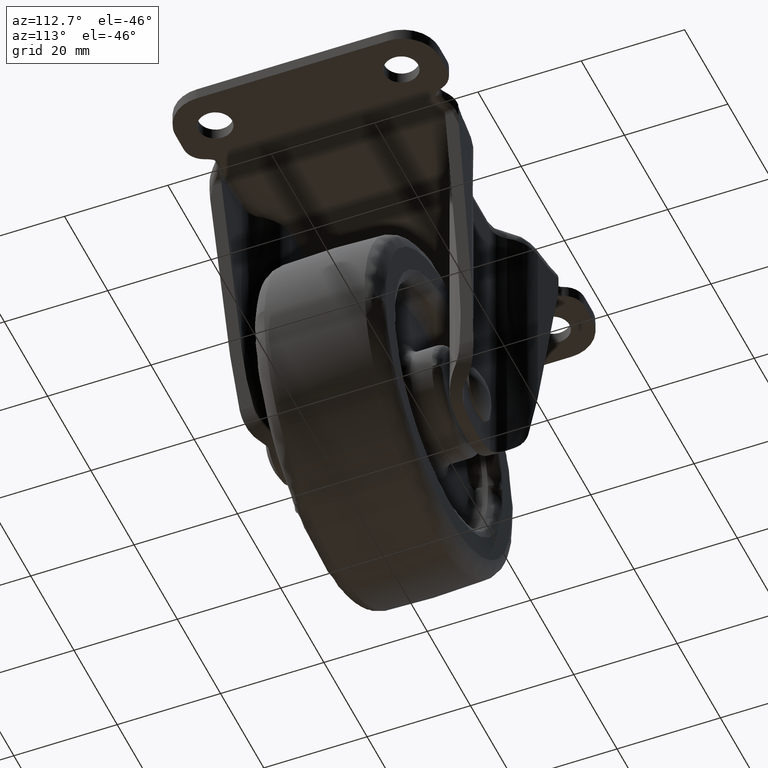
[diagram: clean part render]
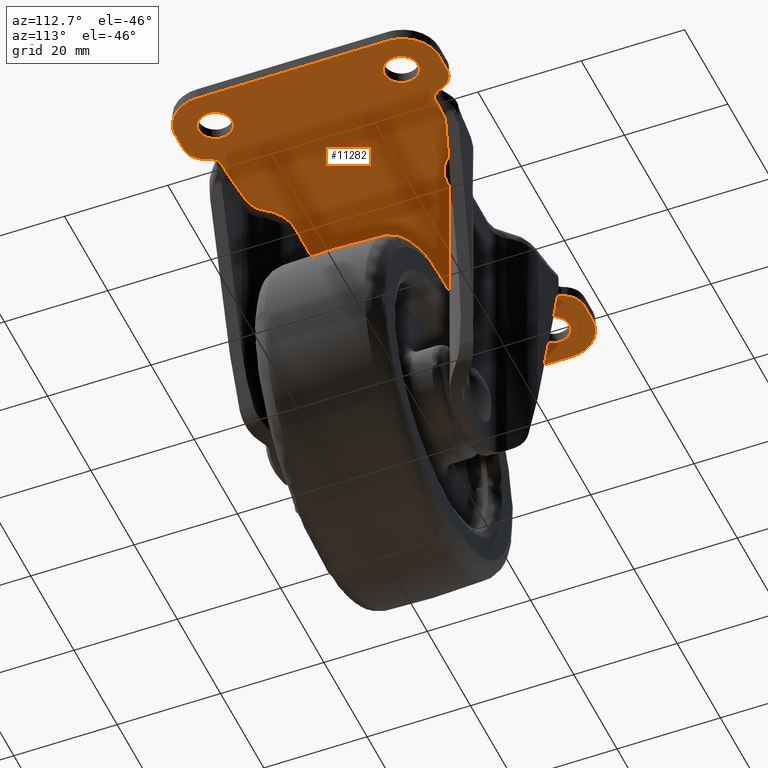
[diagram: same view with one face highlighted and labeled with its STEP entity id]
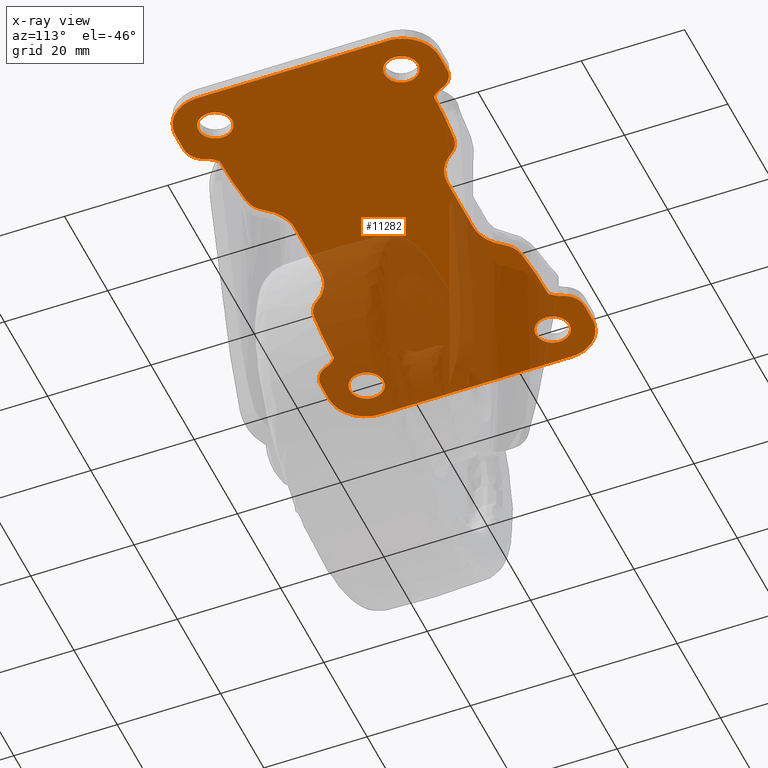
[diagram: x-ray of the same camera — body ghosted, the highlighted face saturated]
A machine part, auxiliary view. The second image highlights one B-rep face of the part: STEP entity #11282.
The next image is the same camera in x-ray: the body ghosted, the highlighted face saturated — about 43% of this face is hidden behind the body in this view.
In plain terms, the highlighted face is a freeform B-spline surface patch.
Its self-contained STEP definition (entity closure, byte-faithful):
#3607=CARTESIAN_POINT('',(-31.750000000000000,-18.0,-2.299999999999970));
#3608=VERTEX_POINT('',#3607);
#3609=CARTESIAN_POINT('',(-34.745007938871737,-21.239981334631661,-2.299999999999970));
#3610=VERTEX_POINT('',#3609);
#3611=CARTESIAN_POINT('',(-31.750000000000000,-18.0,-2.299999999999970));
#3612=CARTESIAN_POINT('',(-31.750000000000007,-21.004269097865425,-2.299999999999971));
#3613=CARTESIAN_POINT('',(-34.745007938871737,-21.239981334631658,-2.299999999999970));
#3621=(BOUNDED_CURVE()B_SPLINE_CURVE(2,(#3611,#3612,#3613),.UNSPECIFIED.,.F.,.U.)B_SPLINE_CURVE_WITH_KNOTS((3,3),(0.0,0.236331300631416),.UNSPECIFIED.)CURVE()GEOMETRIC_REPRESENTATION_ITEM()RATIONAL_B_SPLINE_CURVE((1.0,0.723120658606779,0.969723356168996))REPRESENTATION_ITEM(''));
#3622=EDGE_CURVE('',#3608,#3610,#3621,.T.);
#3663=CARTESIAN_POINT('',(-35.254992061128263,-14.760018665368341,-2.299999999999970));
#3664=VERTEX_POINT('',#3663);
#3670=CARTESIAN_POINT('',(-35.254992061128263,-14.760018665368342,-2.299999999999970));
#3671=CARTESIAN_POINT('',(-35.127692847787756,-14.749999999999995,-2.299999999999970));
#3672=CARTESIAN_POINT('',(-35.0,-14.750000000000000,-2.299999999999970));
#3673=CARTESIAN_POINT('',(-31.749999999999996,-14.749999999999993,-2.299999999999970));
#3674=CARTESIAN_POINT('',(-31.750000000000000,-18.0,-2.299999999999970));
#3682=(BOUNDED_CURVE()B_SPLINE_CURVE(2,(#3670,#3671,#3672,#3673,#3674),.UNSPECIFIED.,.F.,.U.)B_SPLINE_CURVE_WITH_KNOTS((3,2,3),(0.736331300631416,0.750000000000000,1.0),.UNSPECIFIED.)CURVE()GEOMETRIC_REPRESENTATION_ITEM()RATIONAL_B_SPLINE_CURVE((0.969723356168996,0.983986122579768,1.0,0.707106781186547,1.0))REPRESENTATION_ITEM(''));
#3683=EDGE_CURVE('',#3664,#3608,#3682,.T.);
#3710=CARTESIAN_POINT('',(-38.250000000000007,-18.0,-2.299999999999970));
#3711=VERTEX_POINT('',#3710);
#3712=CARTESIAN_POINT('',(-34.745007938871737,-21.239981334631665,-2.299999999999970));
#3713=CARTESIAN_POINT('',(-34.872307152212251,-21.250000000000000,-2.299999999999970));
#3714=CARTESIAN_POINT('',(-35.0,-21.250000000000000,-2.299999999999970));
#3715=CARTESIAN_POINT('',(-38.250000000000014,-21.249999999999996,-2.299999999999970));
#3716=CARTESIAN_POINT('',(-38.250000000000007,-18.0,-2.299999999999970));
#3724=(BOUNDED_CURVE()B_SPLINE_CURVE(2,(#3712,#3713,#3714,#3715,#3716),.UNSPECIFIED.,.F.,.U.)B_SPLINE_CURVE_WITH_KNOTS((3,2,3),(0.236331300631416,0.250000000000000,0.500000000000000),.UNSPECIFIED.)CURVE()GEOMETRIC_REPRESENTATION_ITEM()RATIONAL_B_SPLINE_CURVE((0.969723356168996,0.983986122579768,1.0,0.707106781186547,1.0))REPRESENTATION_ITEM(''));
#3725=EDGE_CURVE('',#3610,#3711,#3724,.T.);
#3727=CARTESIAN_POINT('',(-38.250000000000007,-18.0,-2.299999999999970));
#3728=CARTESIAN_POINT('',(-38.250000000000000,-14.995730902134564,-2.299999999999971));
#3729=CARTESIAN_POINT('',(-35.254992061128263,-14.760018665368342,-2.299999999999971));
#3737=(BOUNDED_CURVE()B_SPLINE_CURVE(2,(#3727,#3728,#3729),.UNSPECIFIED.,.F.,.U.)B_SPLINE_CURVE_WITH_KNOTS((3,3),(0.500000000000000,0.736331300631416),.UNSPECIFIED.)CURVE()GEOMETRIC_REPRESENTATION_ITEM()RATIONAL_B_SPLINE_CURVE((1.0,0.723120658606779,0.969723356168996))REPRESENTATION_ITEM(''));
#3738=EDGE_CURVE('',#3711,#3664,#3737,.T.);
#3797=CARTESIAN_POINT('',(-31.750000000000000,18.0,-2.299999999999970));
#3798=VERTEX_POINT('',#3797);
#3799=CARTESIAN_POINT('',(-34.745007938871737,14.760018665368341,-2.299999999999970));
#3800=VERTEX_POINT('',#3799);
#3801=CARTESIAN_POINT('',(-31.750000000000000,18.0,-2.299999999999970));
#3802=CARTESIAN_POINT('',(-31.749999999999996,14.995730902134580,-2.299999999999970));
#3803=CARTESIAN_POINT('',(-34.745007938871737,14.760018665368339,-2.299999999999970));
#3811=(BOUNDED_CURVE()B_SPLINE_CURVE(2,(#3801,#3802,#3803),.UNSPECIFIED.,.F.,.U.)B_SPLINE_CURVE_WITH_KNOTS((3,3),(0.0,0.236331300631416),.UNSPECIFIED.)CURVE()GEOMETRIC_REPRESENTATION_ITEM()RATIONAL_B_SPLINE_CURVE((1.0,0.723120658606780,0.969723356168995))REPRESENTATION_ITEM(''));
#3812=EDGE_CURVE('',#3798,#3800,#3811,.T.);
#3853=CARTESIAN_POINT('',(-35.254992061128263,21.239981334631661,-2.299999999999970));
#3854=VERTEX_POINT('',#3853);
#3860=CARTESIAN_POINT('',(-35.254992061128263,21.239981334631658,-2.299999999999970));
#3861=CARTESIAN_POINT('',(-35.127692847787756,21.249999999999993,-2.299999999999970));
#3862=CARTESIAN_POINT('',(-35.0,21.250000000000000,-2.299999999999970));
#3863=CARTESIAN_POINT('',(-31.749999999999996,21.249999999999996,-2.299999999999970));
#3864=CARTESIAN_POINT('',(-31.750000000000000,18.0,-2.299999999999970));
#3872=(BOUNDED_CURVE()B_SPLINE_CURVE(2,(#3860,#3861,#3862,#3863,#3864),.UNSPECIFIED.,.F.,.U.)B_SPLINE_CURVE_WITH_KNOTS((3,2,3),(0.736331300631416,0.750000000000000,1.0),.UNSPECIFIED.)CURVE()GEOMETRIC_REPRESENTATION_ITEM()RATIONAL_B_SPLINE_CURVE((0.969723356168996,0.983986122579768,1.0,0.707106781186547,1.0))REPRESENTATION_ITEM(''));
#3873=EDGE_CURVE('',#3854,#3798,#3872,.T.);
#3900=CARTESIAN_POINT('',(-38.250000000000007,18.0,-2.299999999999970));
#3901=VERTEX_POINT('',#3900);
#3902=CARTESIAN_POINT('',(-34.745007938871737,14.760018665368339,-2.299999999999970));
#3903=CARTESIAN_POINT('',(-34.872307152212251,14.749999999999998,-2.299999999999970));
#3904=CARTESIAN_POINT('',(-35.0,14.750000000000000,-2.299999999999970));
#3905=CARTESIAN_POINT('',(-38.250000000000014,14.749999999999993,-2.299999999999970));
#3906=CARTESIAN_POINT('',(-38.250000000000007,18.0,-2.299999999999970));
#3914=(BOUNDED_CURVE()B_SPLINE_CURVE(2,(#3902,#3903,#3904,#3905,#3906),.UNSPECIFIED.,.F.,.U.)B_SPLINE_CURVE_WITH_KNOTS((3,2,3),(0.236331300631416,0.250000000000000,0.500000000000000),.UNSPECIFIED.)CURVE()GEOMETRIC_REPRESENTATION_ITEM()RATIONAL_B_SPLINE_CURVE((0.969723356168995,0.983986122579768,1.0,0.707106781186547,1.0))REPRESENTATION_ITEM(''));
#3915=EDGE_CURVE('',#3800,#3901,#3914,.T.);
#3917=CARTESIAN_POINT('',(-38.250000000000007,18.0,-2.299999999999970));
#3918=CARTESIAN_POINT('',(-38.250000000000000,21.004269097865425,-2.299999999999971));
#3919=CARTESIAN_POINT('',(-35.254992061128263,21.239981334631654,-2.299999999999971));
#3927=(BOUNDED_CURVE()B_SPLINE_CURVE(2,(#3917,#3918,#3919),.UNSPECIFIED.,.F.,.U.)B_SPLINE_CURVE_WITH_KNOTS((3,3),(0.500000000000000,0.736331300631416),.UNSPECIFIED.)CURVE()GEOMETRIC_REPRESENTATION_ITEM()RATIONAL_B_SPLINE_CURVE((1.0,0.723120658606779,0.969723356168996))REPRESENTATION_ITEM(''));
#3928=EDGE_CURVE('',#3901,#3854,#3927,.T.);
#3987=CARTESIAN_POINT('',(38.250000000000007,-18.0,-2.299999999999970));
#3988=VERTEX_POINT('',#3987);
#3989=CARTESIAN_POINT('',(35.254992061128263,-21.239981334631661,-2.299999999999970));
#3990=VERTEX_POINT('',#3989);
#3991=CARTESIAN_POINT('',(38.250000000000007,-18.0,-2.299999999999970));
#3992=CARTESIAN_POINT('',(38.250000000000000,-21.004269097865425,-2.299999999999971));
#3993=CARTESIAN_POINT('',(35.254992061128263,-21.239981334631654,-2.299999999999971));
#4001=(BOUNDED_CURVE()B_SPLINE_CURVE(2,(#3991,#3992,#3993),.UNSPECIFIED.,.F.,.U.)B_SPLINE_CURVE_WITH_KNOTS((3,3),(0.0,0.236331300631416),.UNSPECIFIED.)CURVE()GEOMETRIC_REPRESENTATION_ITEM()RATIONAL_B_SPLINE_CURVE((1.0,0.723120658606779,0.969723356168996))REPRESENTATION_ITEM(''));
#4002=EDGE_CURVE('',#3988,#3990,#4001,.T.);
#4043=CARTESIAN_POINT('',(34.745007938871737,-14.760018665368341,-2.299999999999970));
#4044=VERTEX_POINT('',#4043);
#4050=CARTESIAN_POINT('',(34.745007938871744,-14.760018665368342,-2.299999999999970));
#4051=CARTESIAN_POINT('',(34.872307152212244,-14.749999999999995,-2.299999999999970));
#4052=CARTESIAN_POINT('',(35.0,-14.750000000000000,-2.299999999999970));
#4053=CARTESIAN_POINT('',(38.250000000000014,-14.749999999999993,-2.299999999999970));
#4054=CARTESIAN_POINT('',(38.250000000000007,-18.0,-2.299999999999970));
#4062=(BOUNDED_CURVE()B_SPLINE_CURVE(2,(#4050,#4051,#4052,#4053,#4054),.UNSPECIFIED.,.F.,.U.)B_SPLINE_CURVE_WITH_KNOTS((3,2,3),(0.736331300631416,0.750000000000000,1.0),.UNSPECIFIED.)CURVE()GEOMETRIC_REPRESENTATION_ITEM()RATIONAL_B_SPLINE_CURVE((0.969723356168996,0.983986122579768,1.0,0.707106781186547,1.0))REPRESENTATION_ITEM(''));
#4063=EDGE_CURVE('',#4044,#3988,#4062,.T.);
#4090=CARTESIAN_POINT('',(31.750000000000000,-18.0,-2.299999999999970));
#4091=VERTEX_POINT('',#4090);
#4092=CARTESIAN_POINT('',(35.254992061128263,-21.239981334631661,-2.299999999999970));
#4093=CARTESIAN_POINT('',(35.127692847787749,-21.250000000000000,-2.299999999999970));
#4094=CARTESIAN_POINT('',(35.0,-21.250000000000000,-2.299999999999970));
#4095=CARTESIAN_POINT('',(31.749999999999996,-21.249999999999996,-2.299999999999970));
#4096=CARTESIAN_POINT('',(31.750000000000000,-18.0,-2.299999999999970));
#4104=(BOUNDED_CURVE()B_SPLINE_CURVE(2,(#4092,#4093,#4094,#4095,#4096),.UNSPECIFIED.,.F.,.U.)B_SPLINE_CURVE_WITH_KNOTS((3,2,3),(0.236331300631416,0.250000000000000,0.500000000000000),.UNSPECIFIED.)CURVE()GEOMETRIC_REPRESENTATION_ITEM()RATIONAL_B_SPLINE_CURVE((0.969723356168996,0.983986122579768,1.0,0.707106781186547,1.0))REPRESENTATION_ITEM(''));
#4105=EDGE_CURVE('',#3990,#4091,#4104,.T.);
#4107=CARTESIAN_POINT('',(31.750000000000000,-18.0,-2.299999999999970));
#4108=CARTESIAN_POINT('',(31.749999999999996,-14.995730902134564,-2.299999999999971));
#4109=CARTESIAN_POINT('',(34.745007938871744,-14.760018665368342,-2.299999999999971));
#4117=(BOUNDED_CURVE()B_SPLINE_CURVE(2,(#4107,#4108,#4109),.UNSPECIFIED.,.F.,.U.)B_SPLINE_CURVE_WITH_KNOTS((3,3),(0.500000000000000,0.736331300631416),.UNSPECIFIED.)CURVE()GEOMETRIC_REPRESENTATION_ITEM()RATIONAL_B_SPLINE_CURVE((1.0,0.723120658606779,0.969723356168996))REPRESENTATION_ITEM(''));
#4118=EDGE_CURVE('',#4091,#4044,#4117,.T.);
#4177=CARTESIAN_POINT('',(38.250000000000007,18.0,-2.299999999999970));
#4178=VERTEX_POINT('',#4177);
#4179=CARTESIAN_POINT('',(35.254992061128263,14.760018665368341,-2.299999999999970));
#4180=VERTEX_POINT('',#4179);
#4181=CARTESIAN_POINT('',(38.250000000000007,18.0,-2.299999999999970));
#4182=CARTESIAN_POINT('',(38.250000000000000,14.995730902134580,-2.299999999999971));
#4183=CARTESIAN_POINT('',(35.254992061128263,14.760018665368342,-2.299999999999971));
#4191=(BOUNDED_CURVE()B_SPLINE_CURVE(2,(#4181,#4182,#4183),.UNSPECIFIED.,.F.,.U.)B_SPLINE_CURVE_WITH_KNOTS((3,3),(0.0,0.236331300631416),.UNSPECIFIED.)CURVE()GEOMETRIC_REPRESENTATION_ITEM()RATIONAL_B_SPLINE_CURVE((1.0,0.723120658606779,0.969723356168996))REPRESENTATION_ITEM(''));
#4192=EDGE_CURVE('',#4178,#4180,#4191,.T.);
#4233=CARTESIAN_POINT('',(34.745007938871737,21.239981334631661,-2.299999999999970));
#4234=VERTEX_POINT('',#4233);
#4240=CARTESIAN_POINT('',(34.745007938871744,21.239981334631658,-2.299999999999970));
#4241=CARTESIAN_POINT('',(34.872307152212244,21.249999999999993,-2.299999999999970));
#4242=CARTESIAN_POINT('',(35.0,21.250000000000000,-2.299999999999970));
#4243=CARTESIAN_POINT('',(38.250000000000014,21.249999999999996,-2.299999999999970));
#4244=CARTESIAN_POINT('',(38.250000000000007,18.0,-2.299999999999970));
#4252=(BOUNDED_CURVE()B_SPLINE_CURVE(2,(#4240,#4241,#4242,#4243,#4244),.UNSPECIFIED.,.F.,.U.)B_SPLINE_CURVE_WITH_KNOTS((3,2,3),(0.736331300631416,0.750000000000000,1.0),.UNSPECIFIED.)CURVE()GEOMETRIC_REPRESENTATION_ITEM()RATIONAL_B_SPLINE_CURVE((0.969723356168996,0.983986122579768,1.0,0.707106781186547,1.0))REPRESENTATION_ITEM(''));
#4253=EDGE_CURVE('',#4234,#4178,#4252,.T.);
#4280=CARTESIAN_POINT('',(31.750000000000000,18.0,-2.299999999999970));
#4281=VERTEX_POINT('',#4280);
#4282=CARTESIAN_POINT('',(35.254992061128263,14.760018665368335,-2.299999999999970));
#4283=CARTESIAN_POINT('',(35.127692847787749,14.750000000000002,-2.299999999999970));
#4284=CARTESIAN_POINT('',(35.0,14.750000000000000,-2.299999999999970));
#4285=CARTESIAN_POINT('',(31.749999999999996,14.749999999999993,-2.299999999999970));
#4286=CARTESIAN_POINT('',(31.750000000000000,18.0,-2.299999999999970));
#4294=(BOUNDED_CURVE()B_SPLINE_CURVE(2,(#4282,#4283,#4284,#4285,#4286),.UNSPECIFIED.,.F.,.U.)B_SPLINE_CURVE_WITH_KNOTS((3,2,3),(0.236331300631416,0.250000000000000,0.500000000000000),.UNSPECIFIED.)CURVE()GEOMETRIC_REPRESENTATION_ITEM()RATIONAL_B_SPLINE_CURVE((0.969723356168996,0.983986122579768,1.0,0.707106781186547,1.0))REPRESENTATION_ITEM(''));
#4295=EDGE_CURVE('',#4180,#4281,#4294,.T.);
#4297=CARTESIAN_POINT('',(31.750000000000000,18.0,-2.299999999999970));
#4298=CARTESIAN_POINT('',(31.749999999999996,21.004269097865425,-2.299999999999971));
#4299=CARTESIAN_POINT('',(34.745007938871744,21.239981334631654,-2.299999999999971));
#4307=(BOUNDED_CURVE()B_SPLINE_CURVE(2,(#4297,#4298,#4299),.UNSPECIFIED.,.F.,.U.)B_SPLINE_CURVE_WITH_KNOTS((3,3),(0.500000000000000,0.736331300631416),.UNSPECIFIED.)CURVE()GEOMETRIC_REPRESENTATION_ITEM()RATIONAL_B_SPLINE_CURVE((1.0,0.723120658606779,0.969723356168996))REPRESENTATION_ITEM(''));
#4308=EDGE_CURVE('',#4281,#4234,#4307,.T.);
#4833=CARTESIAN_POINT('',(-26.417385013468699,-20.730078185073150,-2.300000000000000));
#4834=VERTEX_POINT('',#4833);
#4931=CARTESIAN_POINT('',(-28.029909111446202,-23.057649923659401,-2.299999999999970));
#4932=VERTEX_POINT('',#4931);
#4940=CARTESIAN_POINT('',(-26.417385013468699,-20.730078185073150,-2.300000000000000));
#4941=CARTESIAN_POINT('',(-26.441672568074779,-20.747274506300879,-2.300000000000000));
#4942=CARTESIAN_POINT('',(-26.466201056542921,-20.765096688782101,-2.300000000000000));
#4943=CARTESIAN_POINT('',(-26.514262825416999,-20.801360744156160,-2.299999999999999));
#4944=CARTESIAN_POINT('',(-26.537988330394128,-20.819862479855249,-2.299999999999999));
#4945=CARTESIAN_POINT('',(-26.608274976876739,-20.876426780707870,-2.300000000000000));
#4946=CARTESIAN_POINT('',(-26.653950418840800,-20.915551614282379,-2.299999999999999));
#4947=CARTESIAN_POINT('',(-26.787716056850648,-21.036829323350890,-2.300000000000000));
#4948=CARTESIAN_POINT('',(-26.871904465007919,-21.122289781392158,-2.300000000000000));
#4949=CARTESIAN_POINT('',(-27.031970017918219,-21.300080431606609,-2.300000000000000));
#4950=CARTESIAN_POINT('',(-27.107935882288920,-21.392481580217140,-2.300000000000000));
#4951=CARTESIAN_POINT('',(-27.253396456944941,-21.582862243435532,-2.300000000000000));
#4952=CARTESIAN_POINT('',(-27.323025675393041,-21.681053686466971,-2.300000000000000));
#4953=CARTESIAN_POINT('',(-27.455727361734262,-21.880411680324521,-2.300000000000000));
#4954=CARTESIAN_POINT('',(-27.518933817053728,-21.981722061959889,-2.299999999999999));
#4955=CARTESIAN_POINT('',(-27.639564355009998,-22.187342860470899,-2.299999999999999));
#4956=CARTESIAN_POINT('',(-27.696994820870650,-22.291649965575122,-2.299999999999999));
#4957=CARTESIAN_POINT('',(-27.805519584228730,-22.503551533659110,-2.299999999999999));
#4958=CARTESIAN_POINT('',(-27.856633917302521,-22.611135601695771,-2.299999999999999));
#4959=CARTESIAN_POINT('',(-27.950545386260998,-22.830618901463438,-2.300000000000000));
#4960=CARTESIAN_POINT('',(-27.993385247582829,-22.942495966201029,-2.299999999999970));
#4961=CARTESIAN_POINT('',(-28.029909111446202,-23.057649923659401,-2.299999999999970));
#4962=B_SPLINE_CURVE_WITH_KNOTS('',3,(#4940,#4941,#4942,#4943,#4944,#4945,#4946,#4947,#4948,#4949,#4950,#4951,#4952,#4953,#4954,#4955,#4956,#4957,#4958,#4959,#4960,#4961),.UNSPECIFIED.,.F.,.U.,(4,2,2,2,2,2,2,2,2,2,4),(0.0,0.031250000000001,0.062500000000002,0.125000000000000,0.250000000000000,0.375000000000000,0.500000000000000,0.625000000000000,0.750000000000000,0.875000000000000,1.0),.UNSPECIFIED.);
#4963=EDGE_CURVE('',#4834,#4932,#4962,.T.);
#5322=CARTESIAN_POINT('',(26.417385013468401,-20.730080090269549,-2.300000000000000));
#5323=VERTEX_POINT('',#5322);
#5331=CARTESIAN_POINT('',(28.029896909383400,-23.057659746380200,-2.299999999999970));
#5332=VERTEX_POINT('',#5331);
#5333=CARTESIAN_POINT('',(28.029896909383400,-23.057659746380200,-2.299999999999970));
#5334=CARTESIAN_POINT('',(27.993389845395559,-22.942555601617929,-2.299999999999970));
#5335=CARTESIAN_POINT('',(27.950561550324149,-22.830695180642451,-2.300000000000000));
#5336=CARTESIAN_POINT('',(27.856654342755508,-22.611208122213441,-2.299999999999999));
#5337=CARTESIAN_POINT('',(27.805533202047151,-22.503603154059910,-2.299999999999999));
#5338=CARTESIAN_POINT('',(27.696975748803830,-22.291633832247278,-2.300000000000000));
#5339=CARTESIAN_POINT('',(27.639519551176640,-22.187279682573049,-2.299999999999999));
#5340=CARTESIAN_POINT('',(27.518816048144249,-21.981543075574301,-2.300000000000000));
#5341=CARTESIAN_POINT('',(27.455562466521780,-21.880163838874790,-2.299999999999999));
#5342=CARTESIAN_POINT('',(27.322737420505511,-21.680647371084639,-2.300000000000000));
#5343=CARTESIAN_POINT('',(27.253163201121069,-21.582556718262229,-2.300000000000000));
#5344=CARTESIAN_POINT('',(27.107824932115800,-21.392356349549591,-2.300000000000000));
#5345=CARTESIAN_POINT('',(27.031907160195420,-21.300015908528771,-2.300000000000000));
#5346=CARTESIAN_POINT('',(26.871891591424919,-21.122284022752620,-2.300000000000000));
#5347=CARTESIAN_POINT('',(26.787656161654951,-21.036777683633389,-2.300000000000000));
#5348=CARTESIAN_POINT('',(26.653926419815068,-20.915534954899119,-2.300000000000000));
#5349=CARTESIAN_POINT('',(26.608259973337290,-20.876417839229351,-2.300000000000000));
#5350=CARTESIAN_POINT('',(26.537981114378550,-20.819859705973620,-2.300000000000000));
#5351=CARTESIAN_POINT('',(26.514255070548899,-20.801357487651099,-2.300000000000000));
#5352=CARTESIAN_POINT('',(26.466199516381842,-20.765097888782279,-2.300000000000000));
#5353=CARTESIAN_POINT('',(26.441680482451101,-20.747282202118399,-2.300000000000000));
#5354=CARTESIAN_POINT('',(26.417385013468401,-20.730080090269549,-2.300000000000000));
#5355=B_SPLINE_CURVE_WITH_KNOTS('',3,(#5333,#5334,#5335,#5336,#5337,#5338,#5339,#5340,#5341,#5342,#5343,#5344,#5345,#5346,#5347,#5348,#5349,#5350,#5351,#5352,#5353,#5354),.UNSPECIFIED.,.F.,.U.,(4,2,2,2,2,2,2,2,2,2,4),(0.0,0.124999999999999,0.249999999999999,0.374999999999998,0.499999999999997,0.624999999999997,0.749999999999996,0.874999999999995,0.937499999999996,0.968749999999998,1.0),.UNSPECIFIED.);
#5356=EDGE_CURVE('',#5332,#5323,#5355,.T.);
#5745=CARTESIAN_POINT('',(26.417385013468401,20.730080090269400,-2.300000000000000));
#5746=VERTEX_POINT('',#5745);
#5843=CARTESIAN_POINT('',(28.029896909381751,23.057659746376100,-2.299999999999970));
#5844=VERTEX_POINT('',#5843);
#5852=CARTESIAN_POINT('',(26.417385013468401,20.730080090269400,-2.300000000000000));
#5853=CARTESIAN_POINT('',(26.441672479210709,20.747276535522399,-2.300000000000000));
#5854=CARTESIAN_POINT('',(26.466200874818281,20.765098840976460,-2.300000000000000));
#5855=CARTESIAN_POINT('',(26.514262458200850,20.801363134699940,-2.300000000000000));
#5856=CARTESIAN_POINT('',(26.537987871237959,20.819864987817560,-2.300000000000000));
#5857=CARTESIAN_POINT('',(26.608274235996898,20.876429629156888,-2.300000000000000));
#5858=CARTESIAN_POINT('',(26.653949486063890,20.915554676871992,-2.300000000000000));
#5859=CARTESIAN_POINT('',(26.787714538220140,21.036832991613309,-2.300000000000000));
#5860=CARTESIAN_POINT('',(26.871902592436420,21.122293848791259,-2.300000000000000));
#5861=CARTESIAN_POINT('',(27.031967362499248,21.300085170231078,-2.300000000000000));
#5862=CARTESIAN_POINT('',(27.107932821759551,21.392486613315128,-2.300000000000000));
#5863=CARTESIAN_POINT('',(27.253392548806609,21.582867813477570,-2.300000000000000));
#5864=CARTESIAN_POINT('',(27.323021346924332,21.681059529550751,-2.300000000000000));
#5865=CARTESIAN_POINT('',(27.455722209177289,21.880418163599050,-2.300000000000000));
#5866=CARTESIAN_POINT('',(27.518928219445929,21.981728852410040,-2.300000000000000));
#5867=CARTESIAN_POINT('',(27.639557775025409,22.187350257896220,-2.300000000000000));
#5868=CARTESIAN_POINT('',(27.696987703516950,22.291657662883431,-2.300000000000000));
#5869=CARTESIAN_POINT('',(27.805511266699138,22.503559835271151,-2.300000000000000));
#5870=CARTESIAN_POINT('',(27.856624936547750,22.611144208137080,-2.300000000000000));
#5871=CARTESIAN_POINT('',(27.950534918550851,22.830628121366068,-2.300000000000000));
#5872=CARTESIAN_POINT('',(27.993373953744570,22.942505496388041,-2.299999999999970));
#5873=CARTESIAN_POINT('',(28.029896909381751,23.057659746376100,-2.299999999999970));
#5874=B_SPLINE_CURVE_WITH_KNOTS('',3,(#5852,#5853,#5854,#5855,#5856,#5857,#5858,#5859,#5860,#5861,#5862,#5863,#5864,#5865,#5866,#5867,#5868,#5869,#5870,#5871,#5872,#5873),.UNSPECIFIED.,.F.,.U.,(4,2,2,2,2,2,2,2,2,2,4),(0.0,0.031250000000001,0.062500000000001,0.125000000000002,0.250000000000002,0.375000000000002,0.500000000000001,0.625000000000001,0.750000000000001,0.875000000000000,1.0),.UNSPECIFIED.);
#5875=EDGE_CURVE('',#5746,#5844,#5874,.T.);
#6234=CARTESIAN_POINT('',(-26.417385013468699,20.730078887812802,-2.300000000000000));
#6235=VERTEX_POINT('',#6234);
#6243=CARTESIAN_POINT('',(-28.029909274478751,23.057650309274401,-2.299999999999970));
#6244=VERTEX_POINT('',#6243);
#6245=CARTESIAN_POINT('',(-28.029909274478751,23.057650309274401,-2.299999999999970));
#6246=CARTESIAN_POINT('',(-27.993401281843848,22.942546471831520,-2.299999999999971));
#6247=CARTESIAN_POINT('',(-27.950572143634329,22.830686375393199,-2.300000000000000));
#6248=CARTESIAN_POINT('',(-27.856663420277581,22.611199958296879,-2.300000000000000));
#6249=CARTESIAN_POINT('',(-27.805541604495779,22.503595308590679,-2.300000000000000));
#6250=CARTESIAN_POINT('',(-27.696982930995070,22.291626618057659,-2.299999999999999));
#6251=CARTESIAN_POINT('',(-27.639526187764972,22.187272781622958,-2.299999999999999));
#6252=CARTESIAN_POINT('',(-27.518821688406842,21.981536808388270,-2.300000000000000));
#6253=CARTESIAN_POINT('',(-27.455567656020420,21.880157892295092,-2.300000000000000));
#6254=CARTESIAN_POINT('',(-27.322741776302589,21.680642091976910,-2.300000000000000));
#6255=CARTESIAN_POINT('',(-27.253167109091439,21.582551692146438,-2.300000000000000));
#6256=CARTESIAN_POINT('',(-27.107827992414911,21.392351896268721,-2.300000000000000));
#6257=CARTESIAN_POINT('',(-27.031909815738640,21.300011767098461,-2.300000000000000));
#6258=CARTESIAN_POINT('',(-26.871893465256861,21.122280586259720,-2.300000000000000));
#6259=CARTESIAN_POINT('',(-26.787657680316020,21.036774660983269,-2.300000000000000));
#6260=CARTESIAN_POINT('',(-26.653927351864279,20.915532559401910,-2.300000000000000));
#6261=CARTESIAN_POINT('',(-26.608260713429321,20.876415665067160,-2.300000000000000));
#6262=CARTESIAN_POINT('',(-26.537981572998039,20.819857883131000,-2.299999999999999));
#6263=CARTESIAN_POINT('',(-26.514255437281282,20.801355785793280,-2.299999999999999));
#6264=CARTESIAN_POINT('',(-26.466199697870369,20.765096432365642,-2.299999999999999));
#6265=CARTESIAN_POINT('',(-26.441680571613158,20.747280872435880,-2.300000000000000));
#6266=CARTESIAN_POINT('',(-26.417385013468699,20.730078887812802,-2.300000000000000));
#6267=B_SPLINE_CURVE_WITH_KNOTS('',3,(#6245,#6246,#6247,#6248,#6249,#6250,#6251,#6252,#6253,#6254,#6255,#6256,#6257,#6258,#6259,#6260,#6261,#6262,#6263,#6264,#6265,#6266),.UNSPECIFIED.,.F.,.U.,(4,2,2,2,2,2,2,2,2,2,4),(0.0,0.125000000000000,0.250000000000000,0.375000000000000,0.500000000000000,0.625000000000000,0.750000000000000,0.875000000000000,0.937500000000001,0.968750000000000,1.0),.UNSPECIFIED.);
#6268=EDGE_CURVE('',#6244,#6235,#6267,.T.);
#8024=CARTESIAN_POINT('',(26.417385013468401,20.718753008960000,-2.300000000000000));
#8025=VERTEX_POINT('',#8024);
#8033=CARTESIAN_POINT('',(15.677582173383650,20.073606172674801,-2.300000000000000));
#8034=VERTEX_POINT('',#8033);
#8035=CARTESIAN_POINT('',(15.677582173383650,20.073606172674801,-2.300000000000000));
#8036=CARTESIAN_POINT('',(21.029572811196942,20.694341589038444,-2.300000000000000));
#8037=CARTESIAN_POINT('',(26.417385013468351,20.718753008960022,-2.300000000000000));
#8045=(BOUNDED_CURVE()B_SPLINE_CURVE(2,(#8035,#8036,#8037),.UNSPECIFIED.,.F.,.U.)CURVE()GEOMETRIC_REPRESENTATION_ITEM()QUASI_UNIFORM_CURVE()RATIONAL_B_SPLINE_CURVE((1.0,0.998462060748318,1.0))REPRESENTATION_ITEM(''));
#8046=EDGE_CURVE('',#8034,#8025,#8045,.T.);
#8112=CARTESIAN_POINT('',(12.179007029302500,17.998226477740850,-2.300000000000000));
#8113=VERTEX_POINT('',#8112);
#8143=CARTESIAN_POINT('',(12.179007029302500,17.998226477740850,-2.300000000000000));
#8144=CARTESIAN_POINT('',(13.441176062747498,19.857076856060843,-2.300000000000000));
#8145=CARTESIAN_POINT('',(15.677582173383650,20.073606172674801,-2.300000000000000));
#8153=(BOUNDED_CURVE()B_SPLINE_CURVE(2,(#8143,#8144,#8145),.UNSPECIFIED.,.F.,.U.)CURVE()GEOMETRIC_REPRESENTATION_ITEM()QUASI_UNIFORM_CURVE()RATIONAL_B_SPLINE_CURVE((1.0,0.905223693029561,1.0))REPRESENTATION_ITEM(''));
#8154=EDGE_CURVE('',#8113,#8034,#8153,.T.);
#8176=CARTESIAN_POINT('',(6.0,14.725001000000001,-2.300000000000000));
#8177=VERTEX_POINT('',#8176);
#8207=CARTESIAN_POINT('',(6.0,14.725001000000001,-2.300000000000000));
#8208=CARTESIAN_POINT('',(9.956471700423100,14.725000999999997,-2.300000000000000));
#8209=CARTESIAN_POINT('',(12.179007029302509,17.998226477740840,-2.300000000000000));
#8217=(BOUNDED_CURVE()B_SPLINE_CURVE(2,(#8207,#8208,#8209),.UNSPECIFIED.,.F.,.U.)CURVE()GEOMETRIC_REPRESENTATION_ITEM()QUASI_UNIFORM_CURVE()RATIONAL_B_SPLINE_CURVE((1.0,0.883670414521644,1.0))REPRESENTATION_ITEM(''));
#8218=EDGE_CURVE('',#8177,#8113,#8217,.T.);
#8237=CARTESIAN_POINT('',(-5.999999916666600,14.725001000000001,-2.300000000000000));
#8238=VERTEX_POINT('',#8237);
#8260=CARTESIAN_POINT('',(-5.999999916666600,14.725001000000001,-2.300000000000000));
#8261=CARTESIAN_POINT('',(6.0,14.725001000000001,-2.300000000000000));
#8262=QUASI_UNIFORM_CURVE('',1,(#8260,#8261),.UNSPECIFIED.,.F.,.U.);
#8263=EDGE_CURVE('',#8238,#8177,#8262,.T.);
#8285=CARTESIAN_POINT('',(-12.179007454912821,17.998225210995301,-2.300000000000000));
#8286=VERTEX_POINT('',#8285);
#8316=CARTESIAN_POINT('',(-12.179007454912821,17.998225210995301,-2.300000000000000));
#8317=CARTESIAN_POINT('',(-9.956471592505041,14.725000657089987,-2.299999999999999));
#8318=CARTESIAN_POINT('',(-5.999999916666600,14.725001000000001,-2.300000000000000));
#8326=(BOUNDED_CURVE()B_SPLINE_CURVE(2,(#8316,#8317,#8318),.UNSPECIFIED.,.F.,.U.)CURVE()GEOMETRIC_REPRESENTATION_ITEM()QUASI_UNIFORM_CURVE()RATIONAL_B_SPLINE_CURVE((1.0,0.883670437259365,1.0))REPRESENTATION_ITEM(''));
#8327=EDGE_CURVE('',#8286,#8238,#8326,.T.);
#8349=CARTESIAN_POINT('',(-15.677576820123249,20.073605654367249,-2.300000000000000));
#8350=VERTEX_POINT('',#8349);
#8395=CARTESIAN_POINT('',(-15.677576820123249,20.073605654367249,-2.300000000000000));
#8396=CARTESIAN_POINT('',(-13.441174167971894,19.857073794725377,-2.300000000000000));
#8397=CARTESIAN_POINT('',(-12.179007454912830,17.998225210995290,-2.300000000000000));
#8405=(BOUNDED_CURVE()B_SPLINE_CURVE(2,(#8395,#8396,#8397),.UNSPECIFIED.,.F.,.U.)CURVE()GEOMETRIC_REPRESENTATION_ITEM()QUASI_UNIFORM_CURVE()RATIONAL_B_SPLINE_CURVE((1.0,0.905223895863693,1.0))REPRESENTATION_ITEM(''));
#8406=EDGE_CURVE('',#8350,#8286,#8405,.T.);
#8428=CARTESIAN_POINT('',(-26.417385013468699,20.718753013470248,-2.300000000000000));
#8429=VERTEX_POINT('',#8428);
#8454=CARTESIAN_POINT('',(-26.417385013468749,20.718753013470248,-2.300000000000000));
#8455=CARTESIAN_POINT('',(-21.029570110706523,20.694341636335821,-2.300000000000000));
#8456=CARTESIAN_POINT('',(-15.677576820123290,20.073605654367238,-2.300000000000000));
#8464=(BOUNDED_CURVE()B_SPLINE_CURVE(2,(#8454,#8455,#8456),.UNSPECIFIED.,.F.,.U.)CURVE()GEOMETRIC_REPRESENTATION_ITEM()QUASI_UNIFORM_CURVE()RATIONAL_B_SPLINE_CURVE((1.0,0.998462059147065,1.0))REPRESENTATION_ITEM(''));
#8465=EDGE_CURVE('',#8429,#8350,#8464,.T.);
#8489=CARTESIAN_POINT('',(-26.417385013468699,-20.718753013470248,-2.300000000000000));
#8490=VERTEX_POINT('',#8489);
#8498=CARTESIAN_POINT('',(-15.677576820123999,-20.073605654367199,-2.300000000000000));
#8499=VERTEX_POINT('',#8498);
#8500=CARTESIAN_POINT('',(-15.677576820123999,-20.073605654367199,-2.300000000000000));
#8501=CARTESIAN_POINT('',(-21.029570110706910,-20.694341636335817,-2.300000000000000));
#8502=CARTESIAN_POINT('',(-26.417385013468721,-20.718753013470248,-2.300000000000000));
#8510=(BOUNDED_CURVE()B_SPLINE_CURVE(2,(#8500,#8501,#8502),.UNSPECIFIED.,.F.,.U.)CURVE()GEOMETRIC_REPRESENTATION_ITEM()QUASI_UNIFORM_CURVE()RATIONAL_B_SPLINE_CURVE((1.0,0.998462059147065,1.0))REPRESENTATION_ITEM(''));
#8511=EDGE_CURVE('',#8499,#8490,#8510,.T.);
#8577=CARTESIAN_POINT('',(-12.179007029302500,-17.998226477740850,-2.300000000000000));
#8578=VERTEX_POINT('',#8577);
#8608=CARTESIAN_POINT('',(-12.179007029302500,-17.998226477740850,-2.300000000000000));
#8609=CARTESIAN_POINT('',(-13.441174219247333,-19.857074141057772,-2.300000000000000));
#8610=CARTESIAN_POINT('',(-15.677576820123999,-20.073605654367199,-2.300000000000000));
#8618=(BOUNDED_CURVE()B_SPLINE_CURVE(2,(#8608,#8609,#8610),.UNSPECIFIED.,.F.,.U.)CURVE()GEOMETRIC_REPRESENTATION_ITEM()QUASI_UNIFORM_CURVE()RATIONAL_B_SPLINE_CURVE((1.0,0.905223931770745,1.0))REPRESENTATION_ITEM(''));
#8619=EDGE_CURVE('',#8578,#8499,#8618,.T.);
#8641=CARTESIAN_POINT('',(-5.999999999999920,-14.725000000000000,-2.300000000000000));
#8642=VERTEX_POINT('',#8641);
#8672=CARTESIAN_POINT('',(-5.999999999999920,-14.725000000000000,-2.300000000000000));
#8673=CARTESIAN_POINT('',(-9.956471700423055,-14.725000500000005,-2.300000000000000));
#8674=CARTESIAN_POINT('',(-12.179007029302500,-17.998226477740850,-2.300000000000000));
#8682=(BOUNDED_CURVE()B_SPLINE_CURVE(2,(#8672,#8673,#8674),.UNSPECIFIED.,.F.,.U.)CURVE()GEOMETRIC_REPRESENTATION_ITEM()QUASI_UNIFORM_CURVE()RATIONAL_B_SPLINE_CURVE((1.0,0.883670414521644,1.0))REPRESENTATION_ITEM(''));
#8683=EDGE_CURVE('',#8642,#8578,#8682,.T.);
#8702=CARTESIAN_POINT('',(6.000000083333330,-14.725001000000001,-2.300000000000000));
#8703=VERTEX_POINT('',#8702);
#8725=CARTESIAN_POINT('',(6.000000083333330,-14.725001000000001,-2.300000000000000));
#8726=CARTESIAN_POINT('',(-5.999999999999920,-14.725000000000000,-2.300000000000000));
#8727=QUASI_UNIFORM_CURVE('',1,(#8725,#8726),.UNSPECIFIED.,.F.,.U.);
#8728=EDGE_CURVE('',#8703,#8642,#8727,.T.);
#8750=CARTESIAN_POINT('',(12.179007454912620,-17.998225210995251,-2.300000000000000));
#8751=VERTEX_POINT('',#8750);
#8781=CARTESIAN_POINT('',(12.179007454912620,-17.998225210995251,-2.300000000000000));
#8782=CARTESIAN_POINT('',(9.956471652453471,-14.725000745378919,-2.299999999999999));
#8783=CARTESIAN_POINT('',(6.000000083333330,-14.725001000000001,-2.300000000000000));
#8791=(BOUNDED_CURVE()B_SPLINE_CURVE(2,(#8781,#8782,#8783),.UNSPECIFIED.,.F.,.U.)CURVE()GEOMETRIC_REPRESENTATION_ITEM()QUASI_UNIFORM_CURVE()RATIONAL_B_SPLINE_CURVE((1.0,0.883670442482316,1.0))REPRESENTATION_ITEM(''));
#8792=EDGE_CURVE('',#8751,#8703,#8791,.T.);
#8814=CARTESIAN_POINT('',(15.677582173383851,-20.073606172674950,-2.300000000000000));
#8815=VERTEX_POINT('',#8814);
#8860=CARTESIAN_POINT('',(15.677582173383851,-20.073606172674950,-2.300000000000000));
#8861=CARTESIAN_POINT('',(13.441176011471912,-19.857076509729495,-2.300000000000000));
#8862=CARTESIAN_POINT('',(12.179007454912600,-17.998225210995258,-2.300000000000000));
#8870=(BOUNDED_CURVE()B_SPLINE_CURVE(2,(#8860,#8861,#8862),.UNSPECIFIED.,.F.,.U.)CURVE()GEOMETRIC_REPRESENTATION_ITEM()QUASI_UNIFORM_CURVE()RATIONAL_B_SPLINE_CURVE((1.0,0.905223657122417,1.0))REPRESENTATION_ITEM(''));
#8871=EDGE_CURVE('',#8815,#8751,#8870,.T.);
#8893=CARTESIAN_POINT('',(26.417385013468401,-20.718753008960000,-2.300000000000000));
#8894=VERTEX_POINT('',#8893);
#8919=CARTESIAN_POINT('',(26.417385013468369,-20.718753008960022,-2.300000000000000));
#8920=CARTESIAN_POINT('',(21.029572811197006,-20.694341589038448,-2.300000000000000));
#8921=CARTESIAN_POINT('',(15.677582173383820,-20.073606172674928,-2.300000000000000));
#8929=(BOUNDED_CURVE()B_SPLINE_CURVE(2,(#8919,#8920,#8921),.UNSPECIFIED.,.F.,.U.)CURVE()GEOMETRIC_REPRESENTATION_ITEM()QUASI_UNIFORM_CURVE()RATIONAL_B_SPLINE_CURVE((1.0,0.998462060748318,1.0))REPRESENTATION_ITEM(''));
#8930=EDGE_CURVE('',#8894,#8815,#8929,.T.);
#10384=CARTESIAN_POINT('',(31.714146645015749,25.500000000000000,-2.299999999999970));
#10385=VERTEX_POINT('',#10384);
#10386=CARTESIAN_POINT('',(35.499982645015749,25.500000000000000,-2.299999999999970));
#10387=VERTEX_POINT('',#10386);
#10388=CARTESIAN_POINT('',(31.714146645015749,25.500000000000000,-2.299999999999970));
#10389=CARTESIAN_POINT('',(35.499982645015749,25.500000000000000,-2.299999999999970));
#10390=QUASI_UNIFORM_CURVE('',1,(#10388,#10389),.UNSPECIFIED.,.F.,.U.);
#10391=EDGE_CURVE('',#10385,#10387,#10390,.T.);
#10429=CARTESIAN_POINT('',(28.029896909381709,23.057659746376121,-2.299999999999970));
#10430=CARTESIAN_POINT('',(29.062491161402274,25.499999999999996,-2.299999999999971));
#10431=CARTESIAN_POINT('',(31.714146645015749,25.500000000000000,-2.299999999999970));
#10439=(BOUNDED_CURVE()B_SPLINE_CURVE(2,(#10429,#10430,#10431),.UNSPECIFIED.,.F.,.U.)CURVE()GEOMETRIC_REPRESENTATION_ITEM()QUASI_UNIFORM_CURVE()RATIONAL_B_SPLINE_CURVE((1.0,0.833491132704491,1.0))REPRESENTATION_ITEM(''));
#10440=EDGE_CURVE('',#5844,#10385,#10439,.T.);
#10521=CARTESIAN_POINT('',(-31.714162999999999,25.500000000000000,-2.299999999999970));
#10522=VERTEX_POINT('',#10521);
#10523=CARTESIAN_POINT('',(-31.714162999999999,25.500000000000000,-2.299999999999970));
#10524=CARTESIAN_POINT('',(-29.062500142138564,25.500000000000007,-2.299999999999970));
#10525=CARTESIAN_POINT('',(-28.029909274478729,23.057650309274411,-2.299999999999970));
#10533=(BOUNDED_CURVE()B_SPLINE_CURVE(2,(#10523,#10524,#10525),.UNSPECIFIED.,.F.,.U.)CURVE()GEOMETRIC_REPRESENTATION_ITEM()QUASI_UNIFORM_CURVE()RATIONAL_B_SPLINE_CURVE((1.0,0.833490425055562,1.0))REPRESENTATION_ITEM(''));
#10534=EDGE_CURVE('',#10522,#6244,#10533,.T.);
#10564=CARTESIAN_POINT('',(-35.500000000000000,25.500000000000000,-2.299999999999970));
#10565=VERTEX_POINT('',#10564);
#10566=CARTESIAN_POINT('',(-35.500000000000000,25.500000000000000,-2.299999999999970));
#10567=CARTESIAN_POINT('',(-31.714162999999999,25.500000000000000,-2.299999999999970));
#10568=QUASI_UNIFORM_CURVE('',1,(#10566,#10567),.UNSPECIFIED.,.F.,.U.);
#10569=EDGE_CURVE('',#10565,#10522,#10568,.T.);
#10601=CARTESIAN_POINT('',(-42.500000000000000,18.500000000000000,-2.299999999999970));
#10602=VERTEX_POINT('',#10601);
#10603=CARTESIAN_POINT('',(-42.499999999999993,18.500000000000000,-2.299999999999970));
#10604=CARTESIAN_POINT('',(-42.499999999999993,25.499999999999996,-2.299999999999970));
#10605=CARTESIAN_POINT('',(-35.500000000000000,25.500000000000000,-2.299999999999970));
#10613=(BOUNDED_CURVE()B_SPLINE_CURVE(2,(#10603,#10604,#10605),.UNSPECIFIED.,.F.,.U.)CURVE()GEOMETRIC_REPRESENTATION_ITEM()QUASI_UNIFORM_CURVE()RATIONAL_B_SPLINE_CURVE((1.0,0.707106781186547,1.0))REPRESENTATION_ITEM(''));
#10614=EDGE_CURVE('',#10602,#10565,#10613,.T.);
#10645=CARTESIAN_POINT('',(-42.500000000000000,-18.500000000000000,-2.299999999999970));
#10646=VERTEX_POINT('',#10645);
#10647=CARTESIAN_POINT('',(-42.500000000000000,-18.500000000000000,-2.299999999999970));
#10648=CARTESIAN_POINT('',(-42.500000000000000,18.500000000000000,-2.299999999999970));
#10649=QUASI_UNIFORM_CURVE('',1,(#10647,#10648),.UNSPECIFIED.,.F.,.U.);
#10650=EDGE_CURVE('',#10646,#10602,#10649,.T.);
#10682=CARTESIAN_POINT('',(-35.500000000000000,-25.500000000000000,-2.299999999999970));
#10683=VERTEX_POINT('',#10682);
#10684=CARTESIAN_POINT('',(-35.500000000000000,-25.500000000000000,-2.299999999999970));
#10685=CARTESIAN_POINT('',(-42.499999999999993,-25.499999999999996,-2.299999999999970));
#10686=CARTESIAN_POINT('',(-42.499999999999993,-18.500000000000000,-2.299999999999970));
#10694=(BOUNDED_CURVE()B_SPLINE_CURVE(2,(#10684,#10685,#10686),.UNSPECIFIED.,.F.,.U.)CURVE()GEOMETRIC_REPRESENTATION_ITEM()QUASI_UNIFORM_CURVE()RATIONAL_B_SPLINE_CURVE((1.0,0.707106781186547,1.0))REPRESENTATION_ITEM(''));
#10695=EDGE_CURVE('',#10683,#10646,#10694,.T.);
#10726=CARTESIAN_POINT('',(-31.714162999999999,-25.500000000000000,-2.299999999999970));
#10727=VERTEX_POINT('',#10726);
#10728=CARTESIAN_POINT('',(-31.714162999999999,-25.500000000000000,-2.299999999999970));
#10729=CARTESIAN_POINT('',(-35.500000000000000,-25.500000000000000,-2.299999999999970));
#10730=QUASI_UNIFORM_CURVE('',1,(#10728,#10729),.UNSPECIFIED.,.F.,.U.);
#10731=EDGE_CURVE('',#10727,#10683,#10730,.T.);
#10763=CARTESIAN_POINT('',(-28.029909111446191,-23.057649923659412,-2.299999999999970));
#10764=CARTESIAN_POINT('',(-29.062499840814947,-25.499999999999996,-2.299999999999971));
#10765=CARTESIAN_POINT('',(-31.714162999999999,-25.500000000000000,-2.299999999999970));
#10773=(BOUNDED_CURVE()B_SPLINE_CURVE(2,(#10763,#10764,#10765),.UNSPECIFIED.,.F.,.U.)CURVE()GEOMETRIC_REPRESENTATION_ITEM()QUASI_UNIFORM_CURVE()RATIONAL_B_SPLINE_CURVE((1.0,0.833490396139887,1.0))REPRESENTATION_ITEM(''));
#10774=EDGE_CURVE('',#4932,#10727,#10773,.T.);
#10855=CARTESIAN_POINT('',(31.714146645015749,-25.500000000000000,-2.299999999999970));
#10856=VERTEX_POINT('',#10855);
#10857=CARTESIAN_POINT('',(31.714146645015749,-25.500000000000000,-2.299999999999970));
#10858=CARTESIAN_POINT('',(29.062491161405447,-25.500000000000011,-2.299999999999970));
#10859=CARTESIAN_POINT('',(28.029896909383432,-23.057659746380189,-2.299999999999970));
#10867=(BOUNDED_CURVE()B_SPLINE_CURVE(2,(#10857,#10858,#10859),.UNSPECIFIED.,.F.,.U.)CURVE()GEOMETRIC_REPRESENTATION_ITEM()QUASI_UNIFORM_CURVE()RATIONAL_B_SPLINE_CURVE((1.0,0.833491132704796,1.0))REPRESENTATION_ITEM(''));
#10868=EDGE_CURVE('',#10856,#5332,#10867,.T.);
#10898=CARTESIAN_POINT('',(35.499982645015749,-25.500000000000000,-2.299999999999970));
#10899=VERTEX_POINT('',#10898);
#10900=CARTESIAN_POINT('',(35.499982645015749,-25.500000000000000,-2.299999999999970));
#10901=CARTESIAN_POINT('',(31.714146645015749,-25.500000000000000,-2.299999999999970));
#10902=QUASI_UNIFORM_CURVE('',1,(#10900,#10901),.UNSPECIFIED.,.F.,.U.);
#10903=EDGE_CURVE('',#10899,#10856,#10902,.T.);
#10935=CARTESIAN_POINT('',(42.499982645015749,-18.500000000000000,-2.299999999999970));
#10936=VERTEX_POINT('',#10935);
#10937=CARTESIAN_POINT('',(42.499982645015749,-18.500000000000000,-2.299999999999970));
#10938=CARTESIAN_POINT('',(42.499982645015741,-25.499999999999996,-2.299999999999970));
#10939=CARTESIAN_POINT('',(35.499982645015749,-25.500000000000000,-2.299999999999970));
#10947=(BOUNDED_CURVE()B_SPLINE_CURVE(2,(#10937,#10938,#10939),.UNSPECIFIED.,.F.,.U.)CURVE()GEOMETRIC_REPRESENTATION_ITEM()QUASI_UNIFORM_CURVE()RATIONAL_B_SPLINE_CURVE((1.0,0.707106781186547,1.0))REPRESENTATION_ITEM(''));
#10948=EDGE_CURVE('',#10936,#10899,#10947,.T.);
#10979=CARTESIAN_POINT('',(42.499982645015749,18.500000000000000,-2.299999999999970));
#10980=VERTEX_POINT('',#10979);
#10981=CARTESIAN_POINT('',(42.499982645015749,18.500000000000000,-2.299999999999970));
#10982=CARTESIAN_POINT('',(42.499982645015749,-18.500000000000000,-2.299999999999970));
#10983=QUASI_UNIFORM_CURVE('',1,(#10981,#10982),.UNSPECIFIED.,.F.,.U.);
#10984=EDGE_CURVE('',#10980,#10936,#10983,.T.);
#11016=CARTESIAN_POINT('',(35.499982645015749,25.500000000000000,-2.299999999999970));
#11017=CARTESIAN_POINT('',(42.499982645015741,25.499999999999996,-2.299999999999970));
#11018=CARTESIAN_POINT('',(42.499982645015749,18.500000000000000,-2.299999999999970));
#11026=(BOUNDED_CURVE()B_SPLINE_CURVE(2,(#11016,#11017,#11018),.UNSPECIFIED.,.F.,.U.)CURVE()GEOMETRIC_REPRESENTATION_ITEM()QUASI_UNIFORM_CURVE()RATIONAL_B_SPLINE_CURVE((1.0,0.707106781186547,1.0))REPRESENTATION_ITEM(''));
#11027=EDGE_CURVE('',#10387,#10980,#11026,.T.);
#11133=CARTESIAN_POINT('',(-26.417385013468699,20.730078887812802,-2.300000000000000));
#11134=CARTESIAN_POINT('',(-26.417385013468699,20.718753013470248,-2.300000000000000));
#11135=QUASI_UNIFORM_CURVE('',1,(#11133,#11134),.UNSPECIFIED.,.F.,.U.);
#11136=EDGE_CURVE('',#6235,#8429,#11135,.T.);
#11159=CARTESIAN_POINT('',(26.417385013468401,20.718753008960000,-2.300000000000000));
#11160=CARTESIAN_POINT('',(26.417385013468401,20.730080090269400,-2.300000000000000));
#11161=QUASI_UNIFORM_CURVE('',1,(#11159,#11160),.UNSPECIFIED.,.F.,.U.);
#11162=EDGE_CURVE('',#8025,#5746,#11161,.T.);
#11181=CARTESIAN_POINT('',(26.417385013468401,-20.730080090269549,-2.300000000000000));
#11182=CARTESIAN_POINT('',(26.417385013468401,-20.718753008960000,-2.300000000000000));
#11183=QUASI_UNIFORM_CURVE('',1,(#11181,#11182),.UNSPECIFIED.,.F.,.U.);
#11184=EDGE_CURVE('',#5323,#8894,#11183,.T.);
#11207=CARTESIAN_POINT('',(-26.417385013468699,-20.718753013470248,-2.300000000000000));
#11208=CARTESIAN_POINT('',(-26.417385013468699,-20.730078185073150,-2.300000000000000));
#11209=QUASI_UNIFORM_CURVE('',1,(#11207,#11208),.UNSPECIFIED.,.F.,.U.);
#11210=EDGE_CURVE('',#8490,#4834,#11209,.T.);
#11215=CARTESIAN_POINT('',(-46.745748664692428,-28.047449901152110,-2.300000000000000));
#11216=CARTESIAN_POINT('',(46.745727509912868,-28.047449901152110,-2.300000000000000));
#11217=CARTESIAN_POINT('',(-46.745748664692428,28.047451269078710,-2.300000000000000));
#11218=CARTESIAN_POINT('',(46.745727509912868,28.047451269078710,-2.300000000000000));
#11219=B_SPLINE_SURFACE_WITH_KNOTS('',1,1,((#11215,#11217),(#11216,#11218)),.UNSPECIFIED.,.F.,.F.,.U.,(2,2),(2,2),(0.0,93.491476174605296),(0.0,56.094901170230827),.UNSPECIFIED.);
#11220=ORIENTED_EDGE('',*,*,#10534,.T.);
#11221=ORIENTED_EDGE('',*,*,#6268,.T.);
#11222=ORIENTED_EDGE('',*,*,#11136,.T.);
#11223=ORIENTED_EDGE('',*,*,#8465,.T.);
#11224=ORIENTED_EDGE('',*,*,#8406,.T.);
#11225=ORIENTED_EDGE('',*,*,#8327,.T.);
#11226=ORIENTED_EDGE('',*,*,#8263,.T.);
#11227=ORIENTED_EDGE('',*,*,#8218,.T.);
#11228=ORIENTED_EDGE('',*,*,#8154,.T.);
#11229=ORIENTED_EDGE('',*,*,#8046,.T.);
#11230=ORIENTED_EDGE('',*,*,#11162,.T.);
#11231=ORIENTED_EDGE('',*,*,#5875,.T.);
#11232=ORIENTED_EDGE('',*,*,#10440,.T.);
#11233=ORIENTED_EDGE('',*,*,#10391,.T.);
#11234=ORIENTED_EDGE('',*,*,#11027,.T.);
#11235=ORIENTED_EDGE('',*,*,#10984,.T.);
#11236=ORIENTED_EDGE('',*,*,#10948,.T.);
#11237=ORIENTED_EDGE('',*,*,#10903,.T.);
#11238=ORIENTED_EDGE('',*,*,#10868,.T.);
#11239=ORIENTED_EDGE('',*,*,#5356,.T.);
#11240=ORIENTED_EDGE('',*,*,#11184,.T.);
#11241=ORIENTED_EDGE('',*,*,#8930,.T.);
#11242=ORIENTED_EDGE('',*,*,#8871,.T.);
#11243=ORIENTED_EDGE('',*,*,#8792,.T.);
#11244=ORIENTED_EDGE('',*,*,#8728,.T.);
#11245=ORIENTED_EDGE('',*,*,#8683,.T.);
#11246=ORIENTED_EDGE('',*,*,#8619,.T.);
#11247=ORIENTED_EDGE('',*,*,#8511,.T.);
#11248=ORIENTED_EDGE('',*,*,#11210,.T.);
#11249=ORIENTED_EDGE('',*,*,#4963,.T.);
#11250=ORIENTED_EDGE('',*,*,#10774,.T.);
#11251=ORIENTED_EDGE('',*,*,#10731,.T.);
#11252=ORIENTED_EDGE('',*,*,#10695,.T.);
#11253=ORIENTED_EDGE('',*,*,#10650,.T.);
#11254=ORIENTED_EDGE('',*,*,#10614,.T.);
#11255=ORIENTED_EDGE('',*,*,#10569,.T.);
#11256=EDGE_LOOP('',(#11220,#11221,#11222,#11223,#11224,#11225,#11226,#11227,#11228,#11229,#11230,#11231,#11232,#11233,#11234,#11235,#11236,#11237,#11238,#11239,#11240,#11241,#11242,#11243,#11244,#11245,#11246,#11247,#11248,#11249,#11250,#11251,#11252,#11253,#11254,#11255));
#11257=FACE_OUTER_BOUND('',#11256,.T.);
#11258=ORIENTED_EDGE('',*,*,#4308,.F.);
#11259=ORIENTED_EDGE('',*,*,#4295,.F.);
#11260=ORIENTED_EDGE('',*,*,#4192,.F.);
#11261=ORIENTED_EDGE('',*,*,#4253,.F.);
#11262=EDGE_LOOP('',(#11258,#11259,#11260,#11261));
#11263=FACE_BOUND('',#11262,.T.);
#11264=ORIENTED_EDGE('',*,*,#4118,.F.);
#11265=ORIENTED_EDGE('',*,*,#4105,.F.);
#11266=ORIENTED_EDGE('',*,*,#4002,.F.);
#11267=ORIENTED_EDGE('',*,*,#4063,.F.);
#11268=EDGE_LOOP('',(#11264,#11265,#11266,#11267));
#11269=FACE_BOUND('',#11268,.T.);
#11270=ORIENTED_EDGE('',*,*,#3928,.F.);
#11271=ORIENTED_EDGE('',*,*,#3915,.F.);
#11272=ORIENTED_EDGE('',*,*,#3812,.F.);
#11273=ORIENTED_EDGE('',*,*,#3873,.F.);
#11274=EDGE_LOOP('',(#11270,#11271,#11272,#11273));
#11275=FACE_BOUND('',#11274,.T.);
#11276=ORIENTED_EDGE('',*,*,#3738,.F.);
#11277=ORIENTED_EDGE('',*,*,#3725,.F.);
#11278=ORIENTED_EDGE('',*,*,#3622,.F.);
#11279=ORIENTED_EDGE('',*,*,#3683,.F.);
#11280=EDGE_LOOP('',(#11276,#11277,#11278,#11279));
#11281=FACE_BOUND('',#11280,.T.);
#11282=ADVANCED_FACE('',(#11257,#11263,#11269,#11275,#11281),#11219,.F.);